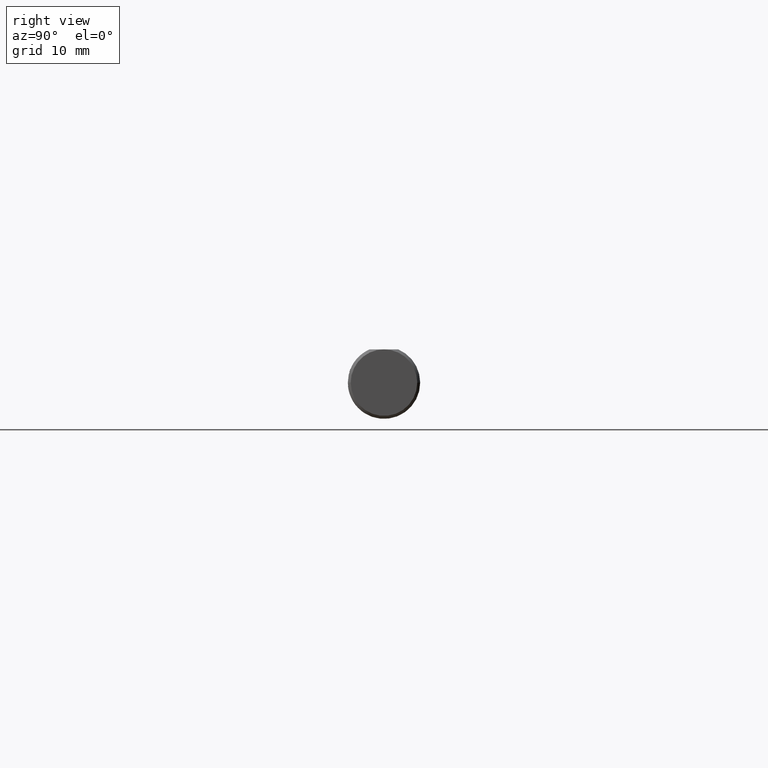
[diagram: clean part render]
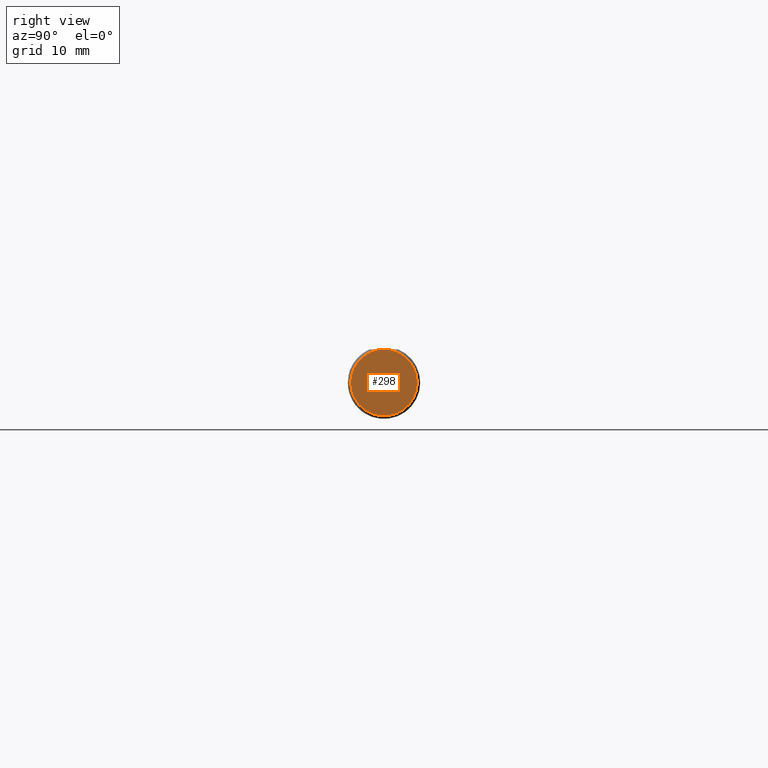
[diagram: same view with one face highlighted and labeled with its STEP entity id]
A machine part, right view. The second image highlights one B-rep face of the part: STEP entity #298.
In plain terms, the highlighted planar face has unit normal (1, 0, -0).
Its self-contained STEP definition (entity closure, byte-faithful):
#12 = AXIS2_PLACEMENT_3D ( 'NONE', #185, #632, #841 ) ;
#70 = CIRCLE ( 'NONE', #563, 0.1148500000000005350 ) ;
#113 = EDGE_CURVE ( 'NONE', #439, #283, #343, .T. ) ;
#118 = DIRECTION ( 'NONE',  ( -1.224646799147352961E-16, 1.000000000000000000, 0.000000000000000000 ) ) ;
#128 = EDGE_LOOP ( 'NONE', ( #321, #728, #297 ) ) ;
#164 = DIRECTION ( 'NONE',  ( -1.224646799147352961E-16, 1.000000000000000000, 0.000000000000000000 ) ) ;
#182 = CARTESIAN_POINT ( 'NONE',  ( -3.410902639041114097E-33, 2.195623696957541765E-16, 0.1148500000000000770 ) ) ;
#185 = CARTESIAN_POINT ( 'NONE',  ( 7.644857643677339782E-18, 2.449293598294705921E-16, 0.000000000000000000 ) ) ;
#210 = CARTESIAN_POINT ( 'NONE',  ( 7.644857643677339782E-18, 2.449293598294705921E-16, 0.000000000000000000 ) ) ;
#212 = AXIS2_PLACEMENT_3D ( 'NONE', #811, #612, #118 ) ;
#236 = CARTESIAN_POINT ( 'NONE',  ( 7.644857643677369056E-18, 9.362250443266664988E-34, 0.000000000000000000 ) ) ;
#278 = CARTESIAN_POINT ( 'NONE',  ( -6.420210844530075568E-18, 0.1148500000000007709, 1.467739188778106595E-17 ) ) ;
#280 = VERTEX_POINT ( 'NONE', #278 ) ;
#283 = VERTEX_POINT ( 'NONE', #408 ) ;
#297 = ORIENTED_EDGE ( 'NONE', *, *, #311, .T. ) ;
#298 = ADVANCED_FACE ( 'NONE', ( #318 ), #843, .T. ) ;
#311 = EDGE_CURVE ( 'NONE', #280, #439, #70, .T. ) ;
#318 = FACE_OUTER_BOUND ( 'NONE', #128, .T. ) ;
#321 = ORIENTED_EDGE ( 'NONE', *, *, #113, .T. ) ;
#323 = EDGE_CURVE ( 'NONE', #283, #280, #341, .T. ) ;
#341 = CIRCLE ( 'NONE', #212, 0.1148500000000005350 ) ;
#343 = CIRCLE ( 'NONE', #12, 0.1148500000000005350 ) ;
#408 = CARTESIAN_POINT ( 'NONE',  ( 2.170992613188475359E-17, -0.1148500000000002991, 0.000000000000000000 ) ) ;
#427 = DIRECTION ( 'NONE',  ( 1.000000000000000000, 1.224646799147352961E-16, -0.000000000000000000 ) ) ;
#439 = VERTEX_POINT ( 'NONE', #182 ) ;
#447 = DIRECTION ( 'NONE',  ( -1.224646799147352961E-16, 1.000000000000000000, 0.000000000000000000 ) ) ;
#478 = DIRECTION ( 'NONE',  ( 1.000000000000000000, 1.224646799147352961E-16, -0.000000000000000000 ) ) ;
#535 = AXIS2_PLACEMENT_3D ( 'NONE', #236, #427, #164 ) ;
#563 = AXIS2_PLACEMENT_3D ( 'NONE', #210, #478, #447 ) ;
#612 = DIRECTION ( 'NONE',  ( 1.000000000000000000, 1.224646799147352961E-16, -0.000000000000000000 ) ) ;
#632 = DIRECTION ( 'NONE',  ( 1.000000000000000000, 1.224646799147352961E-16, -0.000000000000000000 ) ) ;
#728 = ORIENTED_EDGE ( 'NONE', *, *, #323, .T. ) ;
#811 = CARTESIAN_POINT ( 'NONE',  ( 7.644857643677339782E-18, 2.449293598294705921E-16, 0.000000000000000000 ) ) ;
#841 = DIRECTION ( 'NONE',  ( -1.224646799147352961E-16, 1.000000000000000000, 0.000000000000000000 ) ) ;
#843 = PLANE ( 'NONE',  #535 ) ;